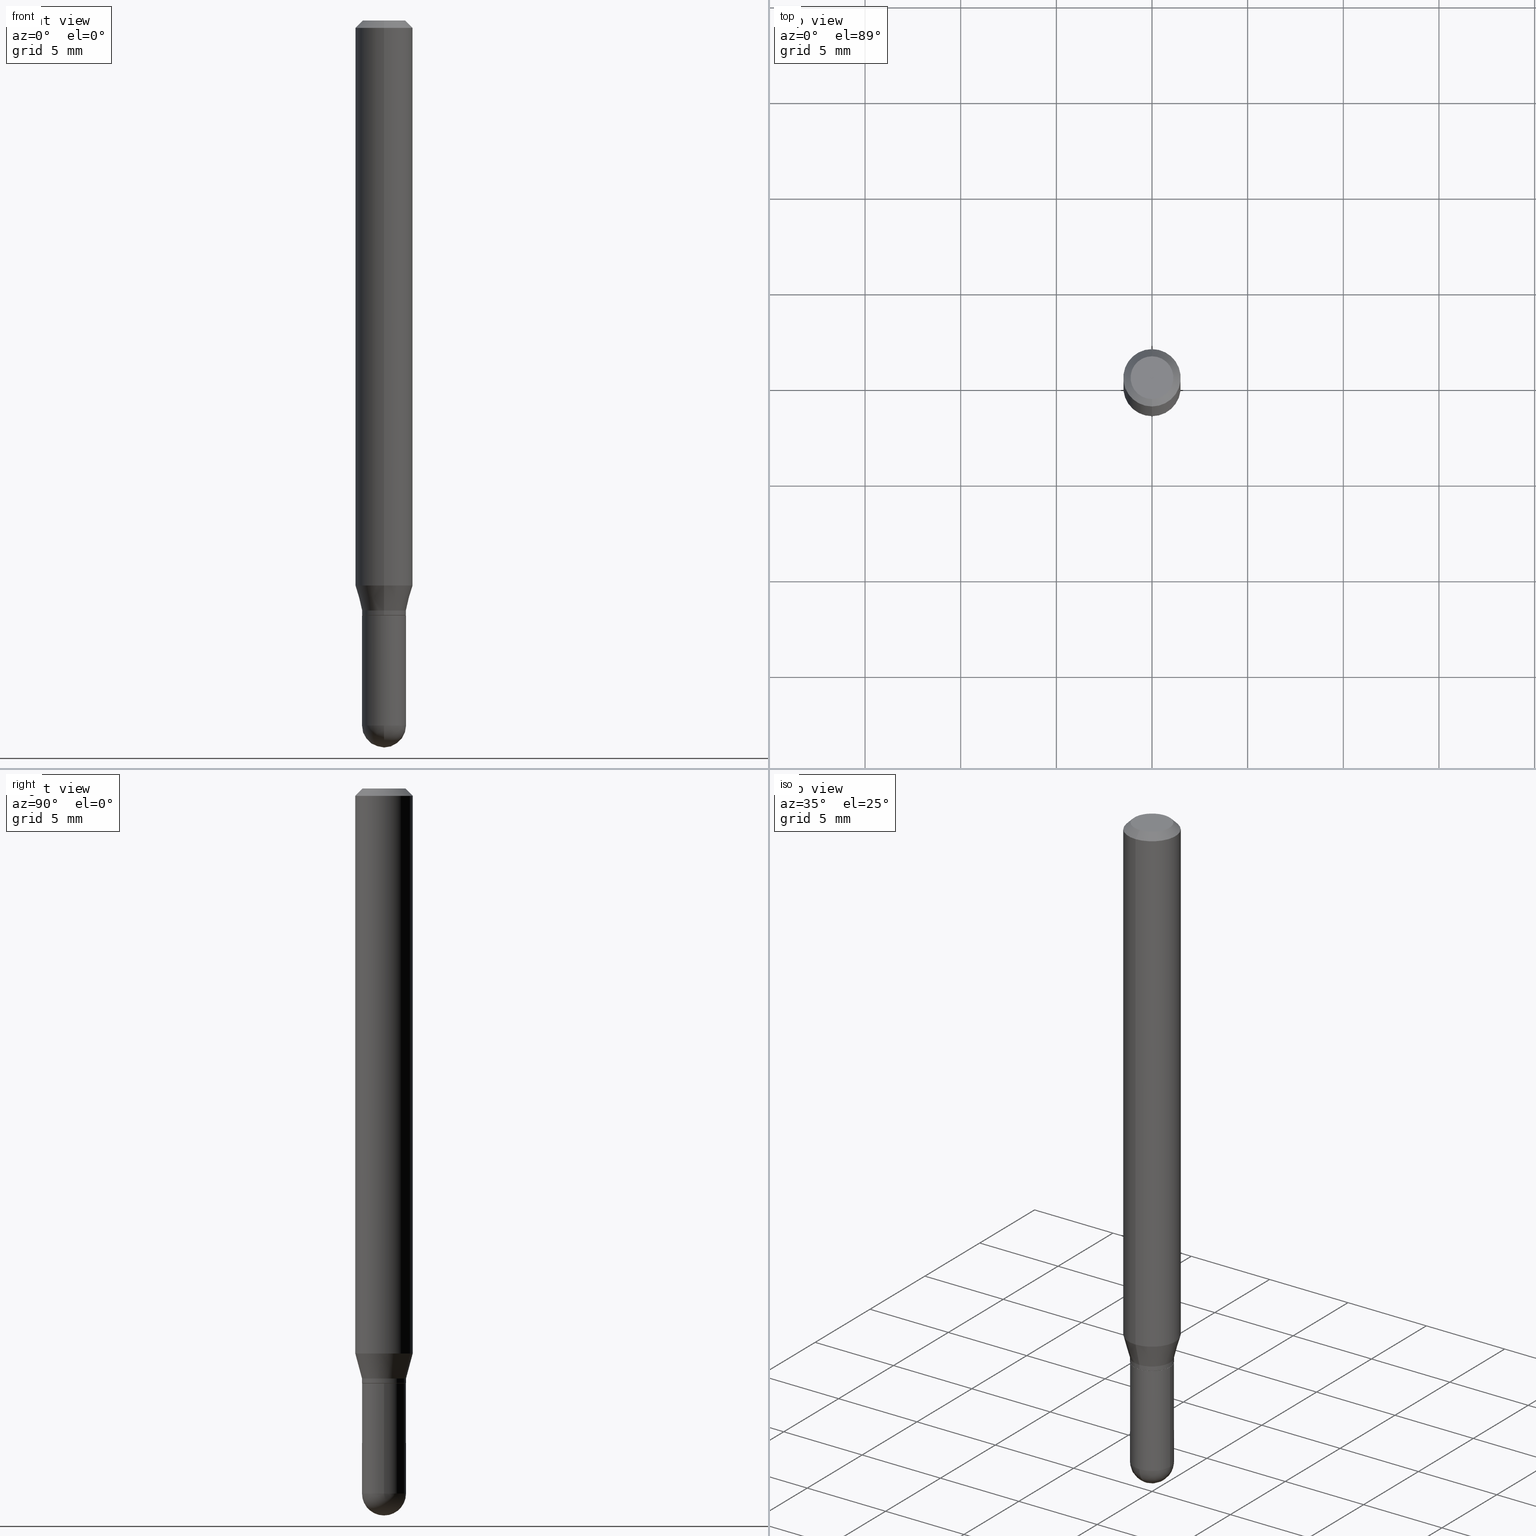
[diagram: canonical four-view strip — front | top / right | iso, engineering-drawing reading convention]
A machine part, canonical four-view strip (front | top / right | iso — engineering-drawing reading convention). The complete STEP part file that produces these views, byte-faithful:
ISO-10303-21;
HEADER;
FILE_DESCRIPTION (( 'STEP AP203' ),
    '1' );
FILE_NAME ('02952.STEP',
    '2024-03-07T22:01:05',
    ( '' ),
    ( '' ),
    'SwSTEP 2.0',
    'SolidWorks 2023',
    '' );
FILE_SCHEMA (( 'CONFIG_CONTROL_DESIGN' ));
ENDSEC;

DATA;
#1 = CARTESIAN_POINT ( 'NONE',  ( 3.200995024599552074E-16, 0.04479999999999572519, -1.224400000000000155 ) ) ;
#2 = VERTEX_POINT ( 'NONE', #159 ) ;
#3 = CARTESIAN_POINT ( 'NONE',  ( 4.195754854663390985E-16, 0.05904999999999999832, -2.061692209999060444E-16 ) ) ;
#4 = CIRCLE ( 'NONE', #315, 0.05904999999999999832 ) ;
#5 = SECURITY_CLASSIFICATION ( '', '', #149 ) ;
#6 = CARTESIAN_POINT ( 'NONE',  ( 3.218758592993257292E-16, 0.04530000000000006244, -1.581619934173709827E-16 ) ) ;
#7 = CARTESIAN_POINT ( 'NONE',  ( -3.128367279603147534E-16, -0.04480000000000427390, -1.224399999999999711 ) ) ;
#8 = EDGE_LOOP ( 'NONE', ( #464, #360, #480, #148 ) ) ;
#9 = DIRECTION ( 'NONE',  ( 1.000000000000000000, -6.982962677686269866E-15, 0.000000000000000000 ) ) ;
#10 = DIRECTION ( 'NONE',  ( -2.445501350679225311E-29, 3.491434733275292845E-15, 1.000000000000000000 ) ) ;
#11 = ORIENTED_EDGE ( 'NONE', *, *, #469, .F. ) ;
#12 = CARTESIAN_POINT ( 'NONE',  ( 3.544012240723413228E-29, -5.070988776393773069E-15, -1.450800000000000090 ) ) ;
#13 = AXIS2_PLACEMENT_3D ( 'NONE', #440, #385, #271 ) ;
#14 = LOCAL_TIME ( 17, 1, 5.000000000000000000, #182 ) ;
#15 = CARTESIAN_POINT ( 'NONE',  ( 2.994271853771643302E-29, -4.274912687422267805E-15, -1.224399999999999933 ) ) ;
#16 = CIRCLE ( 'NONE', #285, 0.04529999999999997223 ) ;
#17 = CC_DESIGN_PERSON_AND_ORGANIZATION_ASSIGNMENT ( #439, #153, ( #336 ) ) ;
#18 = CARTESIAN_POINT ( 'NONE',  ( 0.000000000000000000, 0.000000000000000000, 0.000000000000000000 ) ) ;
#19 = EDGE_CURVE ( 'NONE', #374, #232, #317, .T. ) ;
#20 = CIRCLE ( 'NONE', #87, 0.04530000000000006244 ) ;
#21 = CLOSED_SHELL ( 'NONE', ( #231, #408, #102, #204, #308, #345, #495, #137, #332, #152, #201, #103 ) ) ;
#22 = CARTESIAN_POINT ( 'NONE',  ( 3.544012240723413228E-29, -5.070988776393773069E-15, -1.450800000000000090 ) ) ;
#23 = SPHERICAL_SURFACE ( 'NONE', #265, 0.04529999999999997223 ) ;
#24 = CIRCLE ( 'NONE', #387, 0.05904999999999999832 ) ;
#25 = CC_DESIGN_APPROVAL ( #55, ( #98 ) ) ;
#26 = ORIENTED_EDGE ( 'NONE', *, *, #79, .F. ) ;
#27 = DATE_TIME_ROLE ( 'classification_date' ) ;
#28 = CARTESIAN_POINT ( 'NONE',  ( 2.969083189859647700E-29, -4.238950909669533364E-15, -1.214099999999999957 ) ) ;
#29 = VERTEX_POINT ( 'NONE', #478 ) ;
#30 = CALENDAR_DATE ( 2024, 7, 3 ) ;
#31 = CARTESIAN_POINT ( 'NONE',  ( 2.843590579612342672E-29, -4.059785497200991019E-15, -1.162784301395928477 ) ) ;
#32 = VERTEX_POINT ( 'NONE', #404 ) ;
#33 = APPROVAL_ROLE ( '' ) ;
#34 = DIRECTION ( 'NONE',  ( -6.982962677686265133E-15, -1.000000000000000000, 3.015284761218829434E-15 ) ) ;
#35 = EDGE_LOOP ( 'NONE', ( #236, #114, #377, #54 ) ) ;
#36 = CONICAL_SURFACE ( 'NONE', #399, 0.04530000000000006244, 0.2617993877991508511 ) ;
#37 = CALENDAR_DATE ( 2024, 7, 3 ) ;
#38 = CONICAL_SURFACE ( 'NONE', #382, 0.04479999999999999954, 0.7853981633974739252 ) ;
#39 = APPROVAL_PERSON_ORGANIZATION ( #310, #55, #33 ) ;
#40 = CARTESIAN_POINT ( 'NONE',  ( 3.668252026018860422E-31, -5.237152099912971340E-17, -0.01500000000000009139 ) ) ;
#41 = EDGE_LOOP ( 'NONE', ( #142, #225, #168, #222 ) ) ;
#42 = DIRECTION ( 'NONE',  ( -6.982962677686266711E-15, -1.000000000000000000, 3.048937492928865273E-15 ) ) ;
#43 = ORIENTED_EDGE ( 'NONE', *, *, #69, .T. ) ;
#44 = LINE ( 'NONE', #3, #276 ) ;
#45 = ORIENTED_EDGE ( 'NONE', *, *, #292, .F. ) ;
#46 = DIRECTION ( 'NONE',  ( -2.445501350679225311E-29, 3.491434733275292845E-15, 1.000000000000000000 ) ) ;
#47 = CIRCLE ( 'NONE', #230, 0.04529999999999999999 ) ;
#48 = AXIS2_PLACEMENT_3D ( 'NONE', #417, #500, #393 ) ;
#49 = CARTESIAN_POINT ( 'NONE',  ( 3.547886144013395202E-29, -5.065441126393634337E-15, -1.450799999999999645 ) ) ;
#50 = CARTESIAN_POINT ( 'NONE',  ( 2.994271853771643302E-29, -4.274912687422267805E-15, -1.224399999999999933 ) ) ;
#51 = FACE_OUTER_BOUND ( 'NONE', #386, .T. ) ;
#52 = DIRECTION ( 'NONE',  ( -2.445468806185136597E-29, 3.491481338843145583E-15, 1.000000000000000000 ) ) ;
#53 = CARTESIAN_POINT ( 'NONE',  ( -3.163282092991882303E-16, -0.04530000000000006244, 1.581619934173709827E-16 ) ) ;
#54 = ORIENTED_EDGE ( 'NONE', *, *, #424, .F. ) ;
#55 = APPROVAL ( #143, 'UNSPECIFIED' ) ;
#56 = EDGE_CURVE ( 'NONE', #29, #475, #255, .T. ) ;
#57 = CIRCLE ( 'NONE', #13, 0.04530000000000006244 ) ;
#58 = CC_DESIGN_APPROVAL ( #202, ( #5 ) ) ;
#59 = DIRECTION ( 'NONE',  ( -6.982962677686265922E-15, -1.000000000000000000, 3.491434733275292845E-15 ) ) ;
#60 = CARTESIAN_POINT ( 'NONE',  ( 3.218758592993554101E-16, 0.04529999999999581584, -1.214100000000000179 ) ) ;
#61 = CARTESIAN_POINT ( 'NONE',  ( 2.241714443500564891E-45, -3.200488794638741084E-31, -9.166686589144350566E-17 ) ) ;
#62 =( CONVERSION_BASED_UNIT ( 'INCH', #208 ) LENGTH_UNIT ( ) NAMED_UNIT ( #406 ) );
#63 = DIRECTION ( 'NONE',  ( 2.445501350679225311E-29, -3.491434733275292845E-15, -1.000000000000000000 ) ) ;
#64 = CIRCLE ( 'NONE', #458, 0.05904999999999999832 ) ;
#65 = EDGE_CURVE ( 'NONE', #438, #324, #91, .T. ) ;
#66 = AXIS2_PLACEMENT_3D ( 'NONE', #325, #343, #291 ) ;
#67 = FACE_OUTER_BOUND ( 'NONE', #8, .T. ) ;
#68 = APPROVAL_PERSON_ORGANIZATION ( #274, #453, #267 ) ;
#69 = EDGE_CURVE ( 'NONE', #119, #392, #506, .T. ) ;
#70 = PLANE ( 'NONE',  #160 ) ;
#71 = ORIENTED_EDGE ( 'NONE', *, *, #424, .T. ) ;
#72 = DATE_AND_TIME ( #88, #316 ) ;
#73 = EDGE_CURVE ( 'NONE', #451, #425, #64, .T. ) ;
#74 = DIRECTION ( 'NONE',  ( -6.982962677686266711E-15, -1.000000000000000000, 3.048937492928865273E-15 ) ) ;
#75 = CIRCLE ( 'NONE', #287, 0.04529999999999999999 ) ;
#76 = LOCAL_TIME ( 17, 1, 5.000000000000000000, #82 ) ;
#77 = ORIENTED_EDGE ( 'NONE', *, *, #312, .F. ) ;
#78 = AXIS2_PLACEMENT_3D ( 'NONE', #350, #63, #213 ) ;
#79 = EDGE_CURVE ( 'NONE', #474, #2, #99, .T. ) ;
#80 = CYLINDRICAL_SURFACE ( 'NONE', #206, 0.04530000000000000693 ) ;
#81 = ORIENTED_EDGE ( 'NONE', *, *, #295, .T. ) ;
#82 = COORDINATED_UNIVERSAL_TIME_OFFSET ( 5, 0, .BEHIND. ) ;
#83 = ORIENTED_EDGE ( 'NONE', *, *, #365, .F. ) ;
#84 = DATE_AND_TIME ( #226, #349 ) ;
#85 = DIRECTION ( 'NONE',  ( 1.000000000000000000, -6.982962677686271444E-15, 0.000000000000000000 ) ) ;
#86 = EDGE_LOOP ( 'NONE', ( #405, #503, #127, #124, #110 ) ) ;
#87 = AXIS2_PLACEMENT_3D ( 'NONE', #433, #259, #389 ) ;
#88 = CALENDAR_DATE ( 2024, 7, 3 ) ;
#89 = CARTESIAN_POINT ( 'NONE',  ( 3.668252026018860422E-31, -5.237152099912971340E-17, -0.01500000000000009139 ) ) ;
#90 = ORIENTED_EDGE ( 'NONE', *, *, #194, .T. ) ;
#91 = LINE ( 'NONE', #6, #378 ) ;
#92 = LINE ( 'NONE', #53, #491 ) ;
#93 = ORIENTED_EDGE ( 'NONE', *, *, #263, .T. ) ;
#94 = PLANE ( 'NONE',  #496 ) ;
#95 = AXIS2_PLACEMENT_3D ( 'NONE', #447, #410, #372 ) ;
#96 = ORIENTED_EDGE ( 'NONE', *, *, #65, .T. ) ;
#97 = DIRECTION ( 'NONE',  ( -4.937700262164674260E-15, -0.7071067811865632269, 0.7071067811865319186 ) ) ;
#98 = PRODUCT_DEFINITION ( 'UNKNOWN', '', #242, #351 ) ;
#99 = LINE ( 'NONE', #421, #477 ) ;
#100 = CARTESIAN_POINT ( 'NONE',  ( 0.000000000000000000, 0.000000000000000000, 0.000000000000000000 ) ) ;
#101 = CIRCLE ( 'NONE', #296, 0.04530000000000000693 ) ;
#102 = ADVANCED_FACE ( 'NONE', ( #67 ), #383, .T. ) ;
#103 = ADVANCED_FACE ( 'NONE', ( #174 ), #134, .T. ) ;
#104 = CARTESIAN_POINT ( 'NONE',  ( 3.668252026018860422E-31, -5.237152099912971340E-17, -0.01500000000000009139 ) ) ;
#105 = CC_DESIGN_APPROVAL ( #453, ( #242 ) ) ;
#106 =( NAMED_UNIT ( * ) PLANE_ANGLE_UNIT ( ) SI_UNIT ( $, .RADIAN. ) );
#107 = APPLICATION_PROTOCOL_DEFINITION ( 'international standard', 'config_control_design', 1994, #358 ) ;
#108 = DIRECTION ( 'NONE',  ( -2.445468806185136597E-29, 3.491481338843145583E-15, 1.000000000000000000 ) ) ;
#109 = EDGE_CURVE ( 'NONE', #260, #474, #510, .T. ) ;
#110 = ORIENTED_EDGE ( 'NONE', *, *, #261, .F. ) ;
#111 = DATE_AND_TIME ( #30, #76 ) ;
#112 = CARTESIAN_POINT ( 'NONE',  ( -3.163282092991585987E-16, -0.04530000000000430210, -1.214099999999999957 ) ) ;
#113 = CONICAL_SURFACE ( 'NONE', #376, 0.04479999999999999954, 0.7853981633974739252 ) ;
#114 = ORIENTED_EDGE ( 'NONE', *, *, #420, .T. ) ;
#115 = LINE ( 'NONE', #112, #428 ) ;
#116 = CALENDAR_DATE ( 2024, 7, 3 ) ;
#117 = CARTESIAN_POINT ( 'NONE',  ( 3.599717260347271507E-16, 0.04404999999999999888, -2.454645658922200893E-16 ) ) ;
#118 = CARTESIAN_POINT ( 'NONE',  ( 3.544012240723413228E-29, -5.070988776393773069E-15, -1.450800000000000090 ) ) ;
#119 = VERTEX_POINT ( 'NONE', #209 ) ;
#120 = VECTOR ( 'NONE', #331, 39.37007874015748854 ) ;
#121 = CARTESIAN_POINT ( 'NONE',  ( 0.04530000000000000693, -3.163282092991879344E-16, 2.208908079435559539E-30 ) ) ;
#122 = EDGE_LOOP ( 'NONE', ( #26, #195, #367, #181 ) ) ;
#123 = FACE_OUTER_BOUND ( 'NONE', #41, .T. ) ;
#124 = ORIENTED_EDGE ( 'NONE', *, *, #384, .T. ) ;
#125 = DIRECTION ( 'NONE',  ( 1.000000000000000000, -6.982962677686266711E-15, 4.883557194083112901E-29 ) ) ;
#126 = LINE ( 'NONE', #60, #120 ) ;
#127 = ORIENTED_EDGE ( 'NONE', *, *, #19, .T. ) ;
#128 = CARTESIAN_POINT ( 'NONE',  ( 4.195754854663677441E-16, 0.05904999999999994975, -0.01500000000000029955 ) ) ;
#129 = VECTOR ( 'NONE', #463, 39.37007874015748143 ) ;
#130 = CLOSED_SHELL ( 'NONE', ( #210, #434, #379, #224, #502 ) ) ;
#131 = ORIENTED_EDGE ( 'NONE', *, *, #484, .T. ) ;
#132 = CARTESIAN_POINT ( 'NONE',  ( 3.547886144013395202E-29, -5.065441126393634337E-15, -1.450799999999999645 ) ) ;
#133 = EDGE_CURVE ( 'NONE', #29, #374, #16, .T. ) ;
#134 = CYLINDRICAL_SURFACE ( 'NONE', #460, 0.04530000000000006244 ) ;
#135 = MANIFOLD_SOLID_BREP ( 'Body-Move/Copy2[1]', #130 ) ;
#136 = VECTOR ( 'NONE', #97, 39.37007874015748143 ) ;
#137 = ADVANCED_FACE ( 'NONE', ( #419 ), #173, .T. ) ;
#138 = DIRECTION ( 'NONE',  ( -4.851104656540964275E-15, -0.7071067811865500152, -0.7071067811865450192 ) ) ;
#139 = VECTOR ( 'NONE', #199, 39.37007874015748143 ) ;
#140 = COORDINATED_UNIVERSAL_TIME_OFFSET ( 5, 0, .BEHIND. ) ;
#141 = CARTESIAN_POINT ( 'NONE',  ( 4.123439461173743285E-16, 0.05904999999999994975, -0.01500000000000029955 ) ) ;
#142 = ORIENTED_EDGE ( 'NONE', *, *, #133, .F. ) ;
#143 = APPROVAL_STATUS ( 'not_yet_approved' ) ;
#144 = CARTESIAN_POINT ( 'NONE',  ( 0.000000000000000000, 0.000000000000000000, 0.000000000000000000 ) ) ;
#145 = ORIENTED_EDGE ( 'NONE', *, *, #69, .F. ) ;
#146 = DIRECTION ( 'NONE',  ( 1.000000000000000000, -6.982962677686269866E-15, 0.000000000000000000 ) ) ;
#147 = VECTOR ( 'NONE', #481, 39.37007874015748143 ) ;
#148 = ORIENTED_EDGE ( 'NONE', *, *, #215, .F. ) ;
#149 = SECURITY_CLASSIFICATION_LEVEL ( 'unclassified' ) ;
#150 = DIRECTION ( 'NONE',  ( -2.445468806185136597E-29, 3.491481338843145583E-15, 1.000000000000000000 ) ) ;
#151 = EDGE_LOOP ( 'NONE', ( #184, #156, #505, #427 ) ) ;
#152 = ADVANCED_FACE ( 'NONE', ( #416 ), #70, .F. ) ;
#153 = PERSON_AND_ORGANIZATION_ROLE ( 'design_owner' ) ;
#154 = DIRECTION ( 'NONE',  ( -2.445501350679225311E-29, 3.491434733275292845E-15, 1.000000000000000000 ) ) ;
#155 = FACE_OUTER_BOUND ( 'NONE', #151, .T. ) ;
#156 = ORIENTED_EDGE ( 'NONE', *, *, #492, .T. ) ;
#157 = CARTESIAN_POINT ( 'NONE',  ( -4.123439461173739834E-16, -0.05904999999999999832, 2.061692209999060444E-16 ) ) ;
#158 = CC_DESIGN_PERSON_AND_ORGANIZATION_ASSIGNMENT ( #361, #497, ( #98 ) ) ;
#159 = CARTESIAN_POINT ( 'NONE',  ( -4.123439461173736383E-16, -0.05905000000000005383, -0.01499999999999988495 ) ) ;
#160 = AXIS2_PLACEMENT_3D ( 'NONE', #247, #214, #59 ) ;
#161 = DIRECTION ( 'NONE',  ( -2.445501350679225311E-29, 3.491434733275292845E-15, 1.000000000000000000 ) ) ;
#162 = EDGE_CURVE ( 'NONE', #474, #260, #254, .T. ) ;
#163 = VERTEX_POINT ( 'NONE', #294 ) ;
#164 = LINE ( 'NONE', #7, #136 ) ;
#165 = ORIENTED_EDGE ( 'NONE', *, *, #395, .F. ) ;
#166 = CARTESIAN_POINT ( 'NONE',  ( -3.163282092991585987E-16, -0.04530000000000430210, -1.214099999999999957 ) ) ;
#167 = CYLINDRICAL_SURFACE ( 'NONE', #457, 0.04530000000000000693 ) ;
#168 = ORIENTED_EDGE ( 'NONE', *, *, #253, .F. ) ;
#169 = CONICAL_SURFACE ( 'NONE', #326, 0.04530000000000006244, 0.2617993877991508511 ) ;
#170 = DIRECTION ( 'NONE',  ( 5.024295867788190974E-15, 0.7071067811865681119, 0.7071067811865270336 ) ) ;
#171 = APPROVAL_PERSON_ORGANIZATION ( #436, #202, #234 ) ;
#172 = AXIS2_PLACEMENT_3D ( 'NONE', #49, #52, #238 ) ;
#173 = CONICAL_SURFACE ( 'NONE', #486, 0.05904999999999999832, 0.7853981633974483900 ) ;
#174 = FACE_OUTER_BOUND ( 'NONE', #280, .T. ) ;
#175 = CC_DESIGN_DATE_AND_TIME_ASSIGNMENT ( #219, #465, ( #98 ) ) ;
#176 = DIRECTION ( 'NONE',  ( 1.000000000000000000, -6.982962677686266711E-15, 4.883557194083112901E-29 ) ) ;
#177 = CIRCLE ( 'NONE', #422, 0.04479999999999999954 ) ;
#178 = ORIENTED_EDGE ( 'NONE', *, *, #312, .T. ) ;
#179 = APPROVAL_DATE_TIME ( #84, #202 ) ;
#180 = DIRECTION ( 'NONE',  ( -6.982962677686266711E-15, -1.000000000000000000, 6.030569522437670701E-15 ) ) ;
#181 = ORIENTED_EDGE ( 'NONE', *, *, #395, .T. ) ;
#182 = COORDINATED_UNIVERSAL_TIME_OFFSET ( 5, 0, .BEHIND. ) ;
#183 = FACE_OUTER_BOUND ( 'NONE', #192, .T. ) ;
#184 = ORIENTED_EDGE ( 'NONE', *, *, #467, .F. ) ;
#185 = COORDINATED_UNIVERSAL_TIME_OFFSET ( 5, 0, .BEHIND. ) ;
#186 = CARTESIAN_POINT ( 'NONE',  ( 3.547886144013395202E-29, -5.065441126393634337E-15, -1.450799999999999645 ) ) ;
#187 = AXIS2_PLACEMENT_3D ( 'NONE', #186, #150, #146 ) ;
#188 = SHAPE_DEFINITION_REPRESENTATION ( #342, #380 ) ;
#189 = LINE ( 'NONE', #141, #221 ) ;
#190 = PRODUCT_RELATED_PRODUCT_CATEGORY ( 'detail', '', ( #336 ) ) ;
#191 = LINE ( 'NONE', #157, #139 ) ;
#192 = EDGE_LOOP ( 'NONE', ( #90, #96, #45, #431 ) ) ;
#193 = CARTESIAN_POINT ( 'NONE',  ( -4.123439461173455844E-16, -0.05905000000000406452, -1.162784301395928255 ) ) ;
#194 = EDGE_CURVE ( 'NONE', #32, #438, #468, .T. ) ;
#195 = ORIENTED_EDGE ( 'NONE', *, *, #109, .F. ) ;
#196 = AXIS2_PLACEMENT_3D ( 'NONE', #132, #370, #9 ) ;
#197 = DIRECTION ( 'NONE',  ( -6.982962677686265133E-15, -1.000000000000000000, 3.015284761218829434E-15 ) ) ;
#198 = ORIENTED_EDGE ( 'NONE', *, *, #261, .T. ) ;
#199 = DIRECTION ( 'NONE',  ( -2.445501350679225311E-29, 3.491434733275292845E-15, 1.000000000000000000 ) ) ;
#200 = CYLINDRICAL_SURFACE ( 'NONE', #327, 0.05904999999999999832 ) ;
#201 = ADVANCED_FACE ( 'NONE', ( #155 ), #38, .T. ) ;
#202 = APPROVAL ( #432, 'UNSPECIFIED' ) ;
#203 = DIRECTION ( 'NONE',  ( 1.000000000000000000, -7.105427357601001070E-15, 4.926315508542082329E-29 ) ) ;
#204 = ADVANCED_FACE ( 'NONE', ( #217 ), #470, .T. ) ;
#205 = LINE ( 'NONE', #121, #147 ) ;
#206 = AXIS2_PLACEMENT_3D ( 'NONE', #144, #108, #391 ) ;
#207 = CC_DESIGN_PERSON_AND_ORGANIZATION_ASSIGNMENT ( #472, #462, ( #242 ) ) ;
#208 = LENGTH_MEASURE_WITH_UNIT ( LENGTH_MEASURE( 0.02539999999999999897 ), #418 );
#209 = CARTESIAN_POINT ( 'NONE',  ( -3.128367279603147534E-16, -0.04480000000000427390, -1.224399999999999711 ) ) ;
#210 = ADVANCED_FACE ( 'NONE', ( #394 ), #80, .T. ) ;
#211 = DIRECTION ( 'NONE',  ( 2.445501350679225311E-29, -3.491434733275292845E-15, -1.000000000000000000 ) ) ;
#212 =( GEOMETRIC_REPRESENTATION_CONTEXT ( 3 ) GLOBAL_UNCERTAINTY_ASSIGNED_CONTEXT ( ( #429 ) ) GLOBAL_UNIT_ASSIGNED_CONTEXT ( ( #62, #106, #298 ) ) REPRESENTATION_CONTEXT ( 'NONE', 'WORKASPACE' ) );
#213 = DIRECTION ( 'NONE',  ( 6.982962677686265922E-15, 1.000000000000000000, -3.505890868245046092E-15 ) ) ;
#214 = DIRECTION ( 'NONE',  ( -2.445501350679225031E-29, 3.491434733275292845E-15, 1.000000000000000000 ) ) ;
#215 = EDGE_CURVE ( 'NONE', #260, #471, #189, .T. ) ;
#216 = APPLICATION_PROTOCOL_DEFINITION ( 'international standard', 'config_control_design', 1994, #334 ) ;
#217 = FACE_OUTER_BOUND ( 'NONE', #35, .T. ) ;
#218 = ORIENTED_EDGE ( 'NONE', *, *, #133, .T. ) ;
#219 = DATE_AND_TIME ( #37, #400 ) ;
#220 = DIRECTION ( 'NONE',  ( 4.937700262164548042E-15, 0.7071067811865451302, -0.7071067811865499042 ) ) ;
#221 = VECTOR ( 'NONE', #220, 39.37007874015748143 ) ;
#222 = ORIENTED_EDGE ( 'NONE', *, *, #19, .F. ) ;
#223 = DIRECTION ( 'NONE',  ( -2.445501350679225311E-29, 3.491434733275292845E-15, 1.000000000000000000 ) ) ;
#224 = ADVANCED_FACE ( 'NONE', ( #264 ), #23, .T. ) ;
#225 = ORIENTED_EDGE ( 'NONE', *, *, #56, .T. ) ;
#226 = CALENDAR_DATE ( 2024, 7, 3 ) ;
#227 = DIRECTION ( 'NONE',  ( -2.445501350679225311E-29, 3.491434733275292845E-15, 1.000000000000000000 ) ) ;
#228 = PERSON_AND_ORGANIZATION_ROLE ( 'classification_officer' ) ;
#229 = FACE_OUTER_BOUND ( 'NONE', #390, .T. ) ;
#230 = AXIS2_PLACEMENT_3D ( 'NONE', #306, #426, #501 ) ;
#231 = ADVANCED_FACE ( 'NONE', ( #183 ), #466, .T. ) ;
#232 = VERTEX_POINT ( 'NONE', #366 ) ;
#233 = AXIS2_PLACEMENT_3D ( 'NONE', #61, #494, #300 ) ;
#234 = APPROVAL_ROLE ( '' ) ;
#235 = DIRECTION ( 'NONE',  ( -2.445501350679225311E-29, 3.491434733275292845E-15, 1.000000000000000000 ) ) ;
#236 = ORIENTED_EDGE ( 'NONE', *, *, #277, .T. ) ;
#237 = CARTESIAN_POINT ( 'NONE',  ( 3.075995059520799729E-16, 0.04404999999999999888, -1.996311329464983981E-16 ) ) ;
#238 = DIRECTION ( 'NONE',  ( 1.000000000000000000, -6.982962677686269866E-15, 0.000000000000000000 ) ) ;
#239 = SPHERICAL_SURFACE ( 'NONE', #441, 0.04529999999999997223 ) ;
#240 = ORIENTED_EDGE ( 'NONE', *, *, #384, .F. ) ;
#241 = CIRCLE ( 'NONE', #196, 0.04530000000000000693 ) ;
#242 = PRODUCT_DEFINITION_FORMATION_WITH_SPECIFIED_SOURCE ( 'ANY', '', #336, .NOT_KNOWN. ) ;
#243 = DIRECTION ( 'NONE',  ( -6.982962677686265133E-15, -1.000000000000000000, 3.015284761218829434E-15 ) ) ;
#244 = EDGE_LOOP ( 'NONE', ( #278, #499 ) ) ;
#245 = CARTESIAN_POINT ( 'NONE',  ( 3.183231456205547581E-16, 0.04479999999999572519, -1.224400000000000155 ) ) ;
#246 = DIRECTION ( 'NONE',  ( -2.445501350679225311E-29, 3.491434733275292845E-15, 1.000000000000000000 ) ) ;
#247 = CARTESIAN_POINT ( 'NONE',  ( 2.994271853771643302E-29, -4.274912687422267805E-15, -1.224399999999999933 ) ) ;
#248 = CIRCLE ( 'NONE', #187, 0.04530000000000000693 ) ;
#249 = ORGANIZATION ( 'UNSPECIFIED', 'UNSPECIFIED', '' ) ;
#250 = FACE_OUTER_BOUND ( 'NONE', #86, .T. ) ;
#251 = EDGE_CURVE ( 'NONE', #163, #374, #248, .T. ) ;
#252 = DIRECTION ( 'NONE',  ( -1.000000000000000000, 6.982962677686265922E-15, -4.883557194083112340E-29 ) ) ;
#253 = EDGE_CURVE ( 'NONE', #232, #475, #101, .T. ) ;
#254 = CIRCLE ( 'NONE', #340, 0.04404999999999999888 ) ;
#255 = CIRCLE ( 'NONE', #493, 0.04529999999999997223 ) ;
#256 = DIRECTION ( 'NONE',  ( 6.982962677686265922E-15, 1.000000000000000000, -3.505890868245046092E-15 ) ) ;
#257 = ORIENTED_EDGE ( 'NONE', *, *, #420, .F. ) ;
#258 = COORDINATED_UNIVERSAL_TIME_OFFSET ( 5, 0, .BEHIND. ) ;
#259 = DIRECTION ( 'NONE',  ( -2.445501350679225311E-29, 3.491434733275292845E-15, 1.000000000000000000 ) ) ;
#260 = VERTEX_POINT ( 'NONE', #117 ) ;
#261 = EDGE_CURVE ( 'NONE', #320, #412, #47, .T. ) ;
#262 = DATE_AND_TIME ( #116, #14 ) ;
#263 = EDGE_CURVE ( 'NONE', #163, #320, #437, .T. ) ;
#264 = FACE_OUTER_BOUND ( 'NONE', #309, .T. ) ;
#265 = AXIS2_PLACEMENT_3D ( 'NONE', #118, #176, #180 ) ;
#266 = ORIENTED_EDGE ( 'NONE', *, *, #467, .T. ) ;
#267 = APPROVAL_ROLE ( '' ) ;
#268 = CARTESIAN_POINT ( 'NONE',  ( 0.000000000000000000, 0.000000000000000000, 0.000000000000000000 ) ) ;
#269 = ORIENTED_EDGE ( 'NONE', *, *, #347, .F. ) ;
#270 = MECHANICAL_CONTEXT ( 'NONE', #334, 'mechanical' ) ;
#271 = DIRECTION ( 'NONE',  ( -6.982962677686265133E-15, -1.000000000000000000, 3.015284761218829434E-15 ) ) ;
#272 = CC_DESIGN_DATE_AND_TIME_ASSIGNMENT ( #262, #27, ( #5 ) ) ;
#273 = ORIENTED_EDGE ( 'NONE', *, *, #288, .T. ) ;
#274 = PERSON_AND_ORGANIZATION ( #303, #249 ) ;
#275 = DIRECTION ( 'NONE',  ( -1.807323732225333689E-15, -0.2588190451025186856, 0.9659258262890687563 ) ) ;
#276 = VECTOR ( 'NONE', #479, 39.37007874015748143 ) ;
#277 = EDGE_CURVE ( 'NONE', #425, #451, #24, .T. ) ;
#278 = ORIENTED_EDGE ( 'NONE', *, *, #109, .T. ) ;
#279 = CARTESIAN_POINT ( 'NONE',  ( 0.04529999999999999999, -4.591297960578735035E-15, -1.224399999999999933 ) ) ;
#280 = EDGE_LOOP ( 'NONE', ( #282, #81, #313, #11 ) ) ;
#281 = DIRECTION ( 'NONE',  ( -6.982962677686265922E-15, -1.000000000000000000, 3.505890868245046092E-15 ) ) ;
#282 = ORIENTED_EDGE ( 'NONE', *, *, #65, .F. ) ;
#283 = CC_DESIGN_PERSON_AND_ORGANIZATION_ASSIGNMENT ( #507, #355, ( #242 ) ) ;
#284 = DIRECTION ( 'NONE',  ( -6.982962677686266711E-15, -1.000000000000000000, 6.030569522437670701E-15 ) ) ;
#285 = AXIS2_PLACEMENT_3D ( 'NONE', #22, #252, #459 ) ;
#286 = ORIENTED_EDGE ( 'NONE', *, *, #492, .F. ) ;
#287 = AXIS2_PLACEMENT_3D ( 'NONE', #311, #362, #85 ) ;
#288 = EDGE_CURVE ( 'NONE', #461, #425, #115, .T. ) ;
#289 = CARTESIAN_POINT ( 'NONE',  ( -3.536586717851222218E-16, -0.04404999999999999888, 6.213083410933312730E-17 ) ) ;
#290 = DIRECTION ( 'NONE',  ( -6.982962677686265922E-15, -1.000000000000000000, 4.626330217890369336E-15 ) ) ;
#291 = DIRECTION ( 'NONE',  ( -1.000000000000000000, 6.982962677686265922E-15, -4.876176775795935793E-29 ) ) ;
#292 = EDGE_CURVE ( 'NONE', #461, #324, #57, .T. ) ;
#293 = DIRECTION ( 'NONE',  ( -6.982962677686265133E-15, -1.000000000000000000, 3.491434733275292845E-15 ) ) ;
#294 = CARTESIAN_POINT ( 'NONE',  ( -0.04530000000000000693, -4.348329579537264718E-15, -1.450799999999999645 ) ) ;
#295 = EDGE_CURVE ( 'NONE', #438, #32, #20, .T. ) ;
#296 = AXIS2_PLACEMENT_3D ( 'NONE', #356, #512, #353 ) ;
#297 = CARTESIAN_POINT ( 'NONE',  ( 3.218758592993607350E-16, 0.04529999999999492072, -1.450800000000000090 ) ) ;
#298 =( NAMED_UNIT ( * ) SI_UNIT ( $, .STERADIAN. ) SOLID_ANGLE_UNIT ( ) );
#299 = MANIFOLD_SOLID_BREP ( 'Body-Move/Copy2[2]', #21 ) ;
#300 = DIRECTION ( 'NONE',  ( -6.982962677686265133E-15, -1.000000000000000000, 3.491434733275292451E-15 ) ) ;
#301 = CIRCLE ( 'NONE', #348, 0.05904999999999999832 ) ;
#302 = CC_DESIGN_SECURITY_CLASSIFICATION ( #5, ( #242 ) ) ;
#303 = PERSON ( 'UNSPECIFIED', 'UNSPECIFIED', 'UNSPECIFIED', ('UNSPECIFIED'), ('UNSPECIFIED'), ('UNSPECIFIED') ) ;
#304 = ORIENTED_EDGE ( 'NONE', *, *, #288, .F. ) ;
#305 = APPROVAL_DATE_TIME ( #111, #453 ) ;
#306 = CARTESIAN_POINT ( 'NONE',  ( 2.994232006293080857E-29, -4.274969751279546755E-15, -1.224399999999999933 ) ) ;
#307 = CC_DESIGN_PERSON_AND_ORGANIZATION_ASSIGNMENT ( #397, #228, ( #5 ) ) ;
#308 = ADVANCED_FACE ( 'NONE', ( #229 ), #36, .T. ) ;
#309 = EDGE_LOOP ( 'NONE', ( #442, #218, #357, #269 ) ) ;
#310 = PERSON_AND_ORGANIZATION ( #303, #249 ) ;
#311 = CARTESIAN_POINT ( 'NONE',  ( 2.994232006293080857E-29, -4.274969751279546755E-15, -1.224399999999999933 ) ) ;
#312 = EDGE_CURVE ( 'NONE', #412, #320, #75, .T. ) ;
#313 = ORIENTED_EDGE ( 'NONE', *, *, #388, .T. ) ;
#314 = DIRECTION ( 'NONE',  ( -2.445501350679225311E-29, 3.491434733275292845E-15, 1.000000000000000000 ) ) ;
#315 = AXIS2_PLACEMENT_3D ( 'NONE', #40, #154, #281 ) ;
#316 = LOCAL_TIME ( 17, 1, 5.000000000000000000, #185 ) ;
#317 = CIRCLE ( 'NONE', #172, 0.04530000000000000693 ) ;
#318 = ORIENTED_EDGE ( 'NONE', *, *, #73, .T. ) ;
#319 = APPROVAL_DATE_TIME ( #72, #55 ) ;
#320 = VERTEX_POINT ( 'NONE', #398 ) ;
#321 = APPROVAL_STATUS ( 'not_yet_approved' ) ;
#322 = DIRECTION ( 'NONE',  ( -2.445501350679225311E-29, 3.491434733275292845E-15, 1.000000000000000000 ) ) ;
#323 = EDGE_CURVE ( 'NONE', #2, #471, #4, .T. ) ;
#324 = VERTEX_POINT ( 'NONE', #448 ) ;
#325 = CARTESIAN_POINT ( 'NONE',  ( 3.163282092992178619E-16, 0.04529999999999572563, -1.224400000000000155 ) ) ;
#326 = AXIS2_PLACEMENT_3D ( 'NONE', #452, #330, #243 ) ;
#327 = AXIS2_PLACEMENT_3D ( 'NONE', #18, #10, #344 ) ;
#328 = CARTESIAN_POINT ( 'NONE',  ( 3.544012240723413228E-29, -5.070988776393773069E-15, -1.450800000000000090 ) ) ;
#329 = DIRECTION ( 'NONE',  ( -6.982962677686265133E-15, -1.000000000000000000, 3.015284761218829434E-15 ) ) ;
#330 = DIRECTION ( 'NONE',  ( -2.445501350679225311E-29, 3.491434733275292845E-15, 1.000000000000000000 ) ) ;
#331 = DIRECTION ( 'NONE',  ( 1.839019923739603865E-15, 0.2588190451025254579, 0.9659258262890669799 ) ) ;
#332 = ADVANCED_FACE ( 'NONE', ( #489 ), #94, .F. ) ;
#333 = ORIENTED_EDGE ( 'NONE', *, *, #292, .T. ) ;
#334 = APPLICATION_CONTEXT ( 'configuration controlled 3d designs of mechanical parts and assemblies' ) ;
#335 = FACE_OUTER_BOUND ( 'NONE', #414, .T. ) ;
#336 = PRODUCT ( '02952', '02952', '', ( #270 ) ) ;
#337 = ORIENTED_EDGE ( 'NONE', *, *, #73, .F. ) ;
#338 = CARTESIAN_POINT ( 'NONE',  ( 2.969083189859647700E-29, -4.238950909669533364E-15, -1.214099999999999957 ) ) ;
#339 = DIRECTION ( 'NONE',  ( -2.445468806185136597E-29, 3.491481338843145583E-15, 1.000000000000000000 ) ) ;
#340 = AXIS2_PLACEMENT_3D ( 'NONE', #381, #346, #490 ) ;
#341 = CARTESIAN_POINT ( 'NONE',  ( 2.843590579612342672E-29, -4.059785497200991019E-15, -1.162784301395928477 ) ) ;
#342 = PRODUCT_DEFINITION_SHAPE ( 'NONE', 'NONE',  #98 ) ;
#343 = DIRECTION ( 'NONE',  ( 2.438088387897960049E-29, -3.491481338843145188E-15, -1.000000000000000000 ) ) ;
#344 = DIRECTION ( 'NONE',  ( -6.982962677686265922E-15, -1.000000000000000000, 3.491434733275292845E-15 ) ) ;
#345 = ADVANCED_FACE ( 'NONE', ( #476 ), #169, .T. ) ;
#346 = DIRECTION ( 'NONE',  ( -2.445501350679225311E-29, 3.491434733275292845E-15, 1.000000000000000000 ) ) ;
#347 = EDGE_CURVE ( 'NONE', #475, #163, #241, .T. ) ;
#348 = AXIS2_PLACEMENT_3D ( 'NONE', #89, #235, #375 ) ;
#349 = LOCAL_TIME ( 17, 1, 5.000000000000000000, #258 ) ;
#350 = CARTESIAN_POINT ( 'NONE',  ( 3.668252026018860422E-31, -5.237152099912971340E-17, -0.01500000000000009139 ) ) ;
#351 = DESIGN_CONTEXT ( 'detailed design', #358, 'design' ) ;
#352 = VECTOR ( 'NONE', #170, 39.37007874015748143 ) ;
#353 = DIRECTION ( 'NONE',  ( 1.000000000000000000, -6.982962677686269866E-15, 0.000000000000000000 ) ) ;
#354 = ORIENTED_EDGE ( 'NONE', *, *, #253, .T. ) ;
#355 = PERSON_AND_ORGANIZATION_ROLE ( 'design_supplier' ) ;
#356 = CARTESIAN_POINT ( 'NONE',  ( 3.547886144013395202E-29, -5.065441126393634337E-15, -1.450799999999999645 ) ) ;
#357 = ORIENTED_EDGE ( 'NONE', *, *, #251, .F. ) ;
#358 = APPLICATION_CONTEXT ( 'configuration controlled 3d designs of mechanical parts and assemblies' ) ;
#359 = DIRECTION ( 'NONE',  ( -6.982962677686265922E-15, -1.000000000000000000, 4.626330217890369336E-15 ) ) ;
#360 = ORIENTED_EDGE ( 'NONE', *, *, #79, .T. ) ;
#361 = PERSON_AND_ORGANIZATION ( #303, #249 ) ;
#362 = DIRECTION ( 'NONE',  ( -2.445468806185136597E-29, 3.491481338843145583E-15, 1.000000000000000000 ) ) ;
#363 = CIRCLE ( 'NONE', #409, 0.04530000000000006244 ) ;
#364 = EDGE_LOOP ( 'NONE', ( #511, #483, #273, #337 ) ) ;
#365 = EDGE_CURVE ( 'NONE', #119, #32, #164, .T. ) ;
#366 = CARTESIAN_POINT ( 'NONE',  ( 0.04530000000000000693, -4.986533648135779220E-15, -1.450799999999999645 ) ) ;
#367 = ORIENTED_EDGE ( 'NONE', *, *, #215, .T. ) ;
#368 = DIRECTION ( 'NONE',  ( 6.982962677686265922E-15, 1.000000000000000000, -3.491434733275292845E-15 ) ) ;
#369 = EDGE_LOOP ( 'NONE', ( #401, #93, #77, #240, #354 ) ) ;
#370 = DIRECTION ( 'NONE',  ( -2.445468806185136597E-29, 3.491481338843145583E-15, 1.000000000000000000 ) ) ;
#371 = ORIENTED_EDGE ( 'NONE', *, *, #194, .F. ) ;
#372 = DIRECTION ( 'NONE',  ( -6.982962677686266711E-15, -1.000000000000000000, 3.048937492928865273E-15 ) ) ;
#373 = CARTESIAN_POINT ( 'NONE',  ( 3.218758592993555581E-16, 0.04529999999999576726, -1.223899999999999988 ) ) ;
#374 = VERTEX_POINT ( 'NONE', #411 ) ;
#375 = DIRECTION ( 'NONE',  ( -6.982962677686265922E-15, -1.000000000000000000, 3.505890868245046092E-15 ) ) ;
#376 = AXIS2_PLACEMENT_3D ( 'NONE', #50, #161, #42 ) ;
#377 = ORIENTED_EDGE ( 'NONE', *, *, #323, .F. ) ;
#378 = VECTOR ( 'NONE', #246, 39.37007874015748143 ) ;
#379 = ADVANCED_FACE ( 'NONE', ( #443 ), #403, .F. ) ;
#380 = ADVANCED_BREP_SHAPE_REPRESENTATION ( '02952', ( #135, #299, #48 ), #212 ) ;
#381 = CARTESIAN_POINT ( 'NONE',  ( 2.241714443500564891E-45, -3.200488794638741084E-31, -9.166686589144350566E-17 ) ) ;
#382 = AXIS2_PLACEMENT_3D ( 'NONE', #482, #322, #74 ) ;
#383 = CONICAL_SURFACE ( 'NONE', #78, 0.05904999999999999832, 0.7853981633974483900 ) ;
#384 = EDGE_CURVE ( 'NONE', #232, #412, #205, .T. ) ;
#385 = DIRECTION ( 'NONE',  ( -2.445501350679225311E-29, 3.491434733275292845E-15, 1.000000000000000000 ) ) ;
#386 = EDGE_LOOP ( 'NONE', ( #257, #318, #71, #165 ) ) ;
#387 = AXIS2_PLACEMENT_3D ( 'NONE', #31, #314, #359 ) ;
#388 = EDGE_CURVE ( 'NONE', #32, #461, #92, .T. ) ;
#389 = DIRECTION ( 'NONE',  ( -6.982962677686265133E-15, -1.000000000000000000, 3.015284761218829434E-15 ) ) ;
#390 = EDGE_LOOP ( 'NONE', ( #333, #131, #454, #304 ) ) ;
#391 = DIRECTION ( 'NONE',  ( 1.000000000000000000, -6.982962677686266711E-15, 4.876176775795936353E-29 ) ) ;
#392 = VERTEX_POINT ( 'NONE', #1 ) ;
#393 = DIRECTION ( 'NONE',  ( 1.000000000000000000, 0.000000000000000000, 0.000000000000000000 ) ) ;
#394 = FACE_OUTER_BOUND ( 'NONE', #369, .T. ) ;
#395 = EDGE_CURVE ( 'NONE', #471, #2, #301, .T. ) ;
#396 = EDGE_LOOP ( 'NONE', ( #178, #198 ) ) ;
#397 = PERSON_AND_ORGANIZATION ( #303, #249 ) ;
#398 = CARTESIAN_POINT ( 'NONE',  ( -0.04529999999999999999, -4.348329579537264718E-15, -1.224399999999999933 ) ) ;
#399 = AXIS2_PLACEMENT_3D ( 'NONE', #28, #227, #34 ) ;
#400 = LOCAL_TIME ( 17, 1, 5.000000000000000000, #140 ) ;
#401 = ORIENTED_EDGE ( 'NONE', *, *, #347, .T. ) ;
#402 = DIRECTION ( 'NONE',  ( -2.445501350679225311E-29, 3.491434733275292845E-15, 1.000000000000000000 ) ) ;
#403 = PLANE ( 'NONE',  #66 ) ;
#404 = CARTESIAN_POINT ( 'NONE',  ( -3.163282092991584508E-16, -0.04530000000000435761, -1.223899999999999766 ) ) ;
#405 = ORIENTED_EDGE ( 'NONE', *, *, #263, .F. ) ;
#406 = DIMENSIONAL_EXPONENTS ( 1.000000000000000000, 0.000000000000000000, 0.000000000000000000, 0.000000000000000000, 0.000000000000000000, 0.000000000000000000, 0.000000000000000000 ) ;
#407 = LINE ( 'NONE', #245, #352 ) ;
#408 = ADVANCED_FACE ( 'NONE', ( #335 ), #113, .T. ) ;
#409 = AXIS2_PLACEMENT_3D ( 'NONE', #338, #46, #197 ) ;
#410 = DIRECTION ( 'NONE',  ( -2.445501350679225311E-29, 3.491434733275292845E-15, 1.000000000000000000 ) ) ;
#411 = CARTESIAN_POINT ( 'NONE',  ( -3.163282092991523864E-16, -0.04530000000000506538, -1.450799999999999423 ) ) ;
#412 = VERTEX_POINT ( 'NONE', #279 ) ;
#413 = DIRECTION ( 'NONE',  ( -2.445501350679225311E-29, 3.491434733275292845E-15, 1.000000000000000000 ) ) ;
#414 = EDGE_LOOP ( 'NONE', ( #43, #266, #371, #83 ) ) ;
#415 = CARTESIAN_POINT ( 'NONE',  ( 0.000000000000000000, 0.000000000000000000, 0.000000000000000000 ) ) ;
#416 = FACE_OUTER_BOUND ( 'NONE', #435, .T. ) ;
#417 = CARTESIAN_POINT ( 'NONE',  ( 0.000000000000000000, 0.000000000000000000, 0.000000000000000000 ) ) ;
#418 =( LENGTH_UNIT ( ) NAMED_UNIT ( * ) SI_UNIT ( $, .METRE. ) );
#419 = FACE_OUTER_BOUND ( 'NONE', #122, .T. ) ;
#420 = EDGE_CURVE ( 'NONE', #451, #471, #44, .T. ) ;
#421 = CARTESIAN_POINT ( 'NONE',  ( -4.051124067684085231E-16, -0.05905000000000005383, -0.01499999999999988495 ) ) ;
#422 = AXIS2_PLACEMENT_3D ( 'NONE', #15, #450, #446 ) ;
#423 = DIRECTION ( 'NONE',  ( -2.445501350679225311E-29, 3.491434733275292845E-15, 1.000000000000000000 ) ) ;
#424 = EDGE_CURVE ( 'NONE', #425, #2, #191, .T. ) ;
#425 = VERTEX_POINT ( 'NONE', #193 ) ;
#426 = DIRECTION ( 'NONE',  ( -2.445468806185136597E-29, 3.491481338843145583E-15, 1.000000000000000000 ) ) ;
#427 = ORIENTED_EDGE ( 'NONE', *, *, #295, .F. ) ;
#428 = VECTOR ( 'NONE', #275, 39.37007874015748854 ) ;
#429 = UNCERTAINTY_MEASURE_WITH_UNIT (LENGTH_MEASURE( 1.000000000000000082E-05 ), #62, 'distance_accuracy_value', 'NONE');
#430 = CARTESIAN_POINT ( 'NONE',  ( 0.000000000000000000, 0.000000000000000000, 0.000000000000000000 ) ) ;
#431 = ORIENTED_EDGE ( 'NONE', *, *, #388, .F. ) ;
#432 = APPROVAL_STATUS ( 'not_yet_approved' ) ;
#433 = CARTESIAN_POINT ( 'NONE',  ( 2.993049103096303911E-29, -4.273166970055630203E-15, -1.223899999999999988 ) ) ;
#434 = ADVANCED_FACE ( 'NONE', ( #123 ), #239, .T. ) ;
#435 = EDGE_LOOP ( 'NONE', ( #145, #286 ) ) ;
#436 = PERSON_AND_ORGANIZATION ( #303, #249 ) ;
#437 = LINE ( 'NONE', #504, #129 ) ;
#438 = VERTEX_POINT ( 'NONE', #373 ) ;
#439 = PERSON_AND_ORGANIZATION ( #303, #249 ) ;
#440 = CARTESIAN_POINT ( 'NONE',  ( 2.969083189859647700E-29, -4.238950909669533364E-15, -1.214099999999999957 ) ) ;
#441 = AXIS2_PLACEMENT_3D ( 'NONE', #12, #125, #284 ) ;
#442 = ORIENTED_EDGE ( 'NONE', *, *, #56, .F. ) ;
#443 = FACE_OUTER_BOUND ( 'NONE', #396, .T. ) ;
#444 = DIRECTION ( 'NONE',  ( 7.105427357601001070E-15, 1.000000000000000000, 0.000000000000000000 ) ) ;
#445 = CARTESIAN_POINT ( 'NONE',  ( 4.195754854663673989E-16, 0.05904999999999592519, -1.162784301395928699 ) ) ;
#446 = DIRECTION ( 'NONE',  ( -6.982962677686266711E-15, -1.000000000000000000, 3.048937492928865273E-15 ) ) ;
#447 = CARTESIAN_POINT ( 'NONE',  ( 2.994271853771643302E-29, -4.274912687422267805E-15, -1.224399999999999933 ) ) ;
#448 = CARTESIAN_POINT ( 'NONE',  ( 3.707256723828616017E-16, 0.04529999999999581584, -1.214100000000000179 ) ) ;
#449 = AXIS2_PLACEMENT_3D ( 'NONE', #430, #473, #509 ) ;
#450 = DIRECTION ( 'NONE',  ( -2.445501350679225311E-29, 3.491434733275292845E-15, 1.000000000000000000 ) ) ;
#451 = VERTEX_POINT ( 'NONE', #445 ) ;
#452 = CARTESIAN_POINT ( 'NONE',  ( 2.969083189859647700E-29, -4.238950909669533364E-15, -1.214099999999999957 ) ) ;
#453 = APPROVAL ( #321, 'UNSPECIFIED' ) ;
#454 = ORIENTED_EDGE ( 'NONE', *, *, #277, .F. ) ;
#455 = AXIS2_PLACEMENT_3D ( 'NONE', #456, #402, #329 ) ;
#456 = CARTESIAN_POINT ( 'NONE',  ( 2.993049103096303911E-29, -4.273166970055630203E-15, -1.223899999999999988 ) ) ;
#457 = AXIS2_PLACEMENT_3D ( 'NONE', #415, #339, #487 ) ;
#458 = AXIS2_PLACEMENT_3D ( 'NONE', #341, #488, #290 ) ;
#459 = DIRECTION ( 'NONE',  ( -6.982962677686266711E-15, -1.000000000000000000, 0.000000000000000000 ) ) ;
#460 = AXIS2_PLACEMENT_3D ( 'NONE', #100, #423, #293 ) ;
#461 = VERTEX_POINT ( 'NONE', #166 ) ;
#462 = PERSON_AND_ORGANIZATION_ROLE ( 'creator' ) ;
#463 = DIRECTION ( 'NONE',  ( -2.445468806185136877E-29, 3.491481338843145188E-15, 1.000000000000000000 ) ) ;
#464 = ORIENTED_EDGE ( 'NONE', *, *, #162, .F. ) ;
#465 = DATE_TIME_ROLE ( 'creation_date' ) ;
#466 = CYLINDRICAL_SURFACE ( 'NONE', #449, 0.04530000000000006244 ) ;
#467 = EDGE_CURVE ( 'NONE', #392, #438, #407, .T. ) ;
#468 = CIRCLE ( 'NONE', #455, 0.04530000000000006244 ) ;
#469 = EDGE_CURVE ( 'NONE', #324, #461, #363, .T. ) ;
#470 = CYLINDRICAL_SURFACE ( 'NONE', #508, 0.05904999999999999832 ) ;
#471 = VERTEX_POINT ( 'NONE', #128 ) ;
#472 = PERSON_AND_ORGANIZATION ( #303, #249 ) ;
#473 = DIRECTION ( 'NONE',  ( -2.445501350679225311E-29, 3.491434733275292845E-15, 1.000000000000000000 ) ) ;
#474 = VERTEX_POINT ( 'NONE', #289 ) ;
#475 = VERTEX_POINT ( 'NONE', #297 ) ;
#476 = FACE_OUTER_BOUND ( 'NONE', #364, .T. ) ;
#477 = VECTOR ( 'NONE', #138, 39.37007874015748143 ) ;
#478 = CARTESIAN_POINT ( 'NONE',  ( 3.652855025998608587E-29, -5.231926706043436969E-15, -1.496099999999999985 ) ) ;
#479 = DIRECTION ( 'NONE',  ( -2.445501350679225311E-29, 3.491434733275292845E-15, 1.000000000000000000 ) ) ;
#480 = ORIENTED_EDGE ( 'NONE', *, *, #323, .T. ) ;
#481 = DIRECTION ( 'NONE',  ( -2.445468806185136877E-29, 3.491481338843145188E-15, 1.000000000000000000 ) ) ;
#482 = CARTESIAN_POINT ( 'NONE',  ( 2.994271853771643302E-29, -4.274912687422267805E-15, -1.224399999999999933 ) ) ;
#483 = ORIENTED_EDGE ( 'NONE', *, *, #469, .T. ) ;
#484 = EDGE_CURVE ( 'NONE', #324, #451, #126, .T. ) ;
#485 = DIRECTION ( 'NONE',  ( 2.445501350679225031E-29, -3.491434733275292845E-15, -1.000000000000000000 ) ) ;
#486 = AXIS2_PLACEMENT_3D ( 'NONE', #104, #211, #256 ) ;
#487 = DIRECTION ( 'NONE',  ( 1.000000000000000000, -6.982962677686266711E-15, 4.876176775795936353E-29 ) ) ;
#488 = DIRECTION ( 'NONE',  ( -2.445501350679225311E-29, 3.491434733275292845E-15, 1.000000000000000000 ) ) ;
#489 = FACE_OUTER_BOUND ( 'NONE', #244, .T. ) ;
#490 = DIRECTION ( 'NONE',  ( -6.982962677686265133E-15, -1.000000000000000000, 3.491434733275292451E-15 ) ) ;
#491 = VECTOR ( 'NONE', #413, 39.37007874015748143 ) ;
#492 = EDGE_CURVE ( 'NONE', #392, #119, #177, .T. ) ;
#493 = AXIS2_PLACEMENT_3D ( 'NONE', #328, #203, #444 ) ;
#494 = DIRECTION ( 'NONE',  ( -2.445501350679225311E-29, 3.491434733275292845E-15, 1.000000000000000000 ) ) ;
#495 = ADVANCED_FACE ( 'NONE', ( #51 ), #200, .T. ) ;
#496 = AXIS2_PLACEMENT_3D ( 'NONE', #237, #485, #368 ) ;
#497 = PERSON_AND_ORGANIZATION_ROLE ( 'creator' ) ;
#498 = DIRECTION ( 'NONE',  ( -6.982962677686265922E-15, -1.000000000000000000, 3.491434733275292845E-15 ) ) ;
#499 = ORIENTED_EDGE ( 'NONE', *, *, #162, .T. ) ;
#500 = DIRECTION ( 'NONE',  ( 0.000000000000000000, 0.000000000000000000, 1.000000000000000000 ) ) ;
#501 = DIRECTION ( 'NONE',  ( 1.000000000000000000, -6.982962677686271444E-15, 0.000000000000000000 ) ) ;
#502 = ADVANCED_FACE ( 'NONE', ( #250 ), #167, .T. ) ;
#503 = ORIENTED_EDGE ( 'NONE', *, *, #251, .T. ) ;
#504 = CARTESIAN_POINT ( 'NONE',  ( -0.04530000000000000693, 3.218758592993254334E-16, -2.228277595885472564E-30 ) ) ;
#505 = ORIENTED_EDGE ( 'NONE', *, *, #365, .T. ) ;
#506 = CIRCLE ( 'NONE', #95, 0.04479999999999999954 ) ;
#507 = PERSON_AND_ORGANIZATION ( #303, #249 ) ;
#508 = AXIS2_PLACEMENT_3D ( 'NONE', #268, #223, #498 ) ;
#509 = DIRECTION ( 'NONE',  ( -6.982962677686265133E-15, -1.000000000000000000, 3.491434733275292845E-15 ) ) ;
#510 = CIRCLE ( 'NONE', #233, 0.04404999999999999888 ) ;
#511 = ORIENTED_EDGE ( 'NONE', *, *, #484, .F. ) ;
#512 = DIRECTION ( 'NONE',  ( -2.445468806185136597E-29, 3.491481338843145583E-15, 1.000000000000000000 ) ) ;
ENDSEC;
END-ISO-10303-21;
